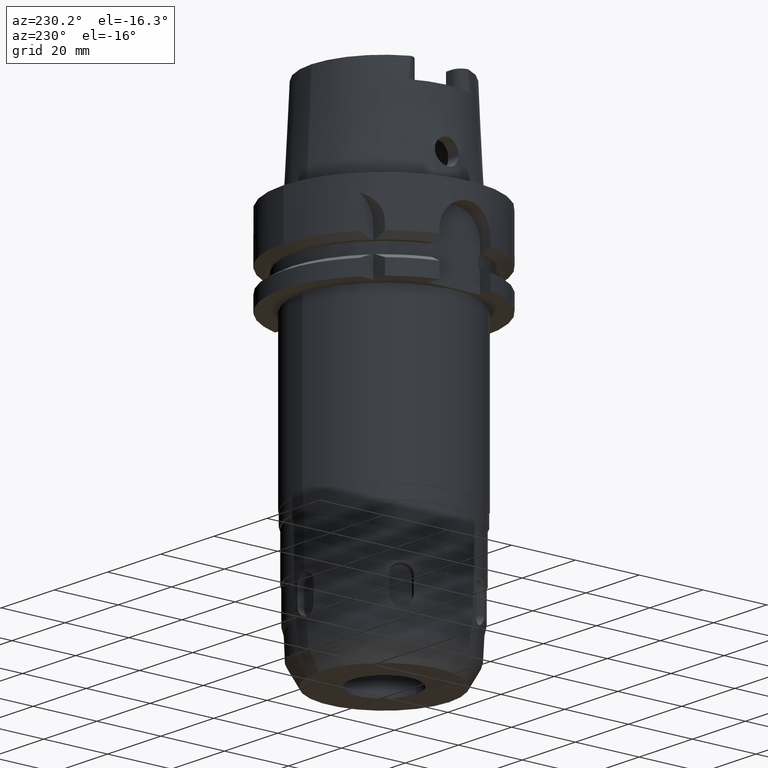
[diagram: clean part render]
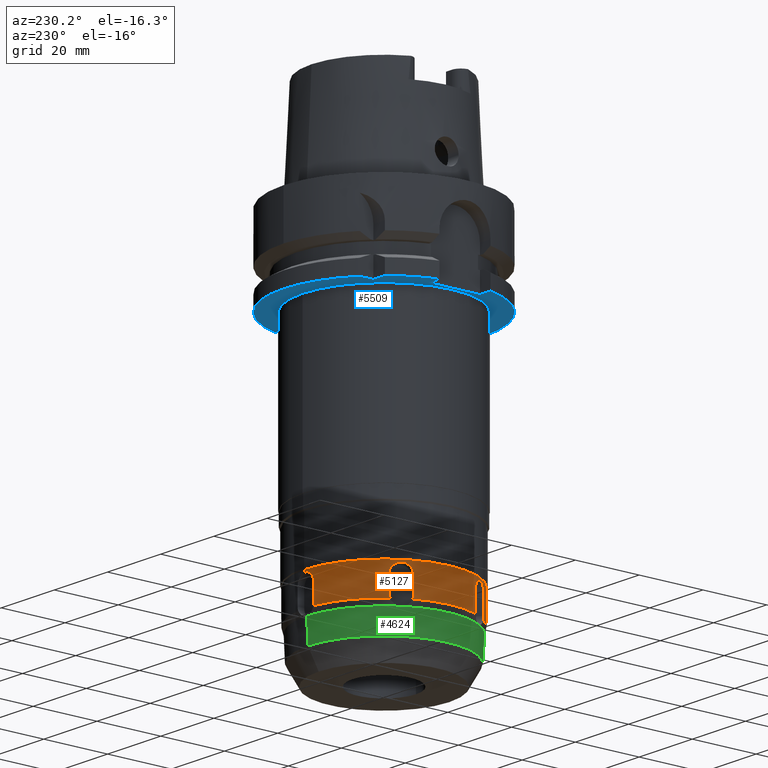
[diagram: same view with three faces highlighted in distinct colors, each labeled with its STEP entity id]
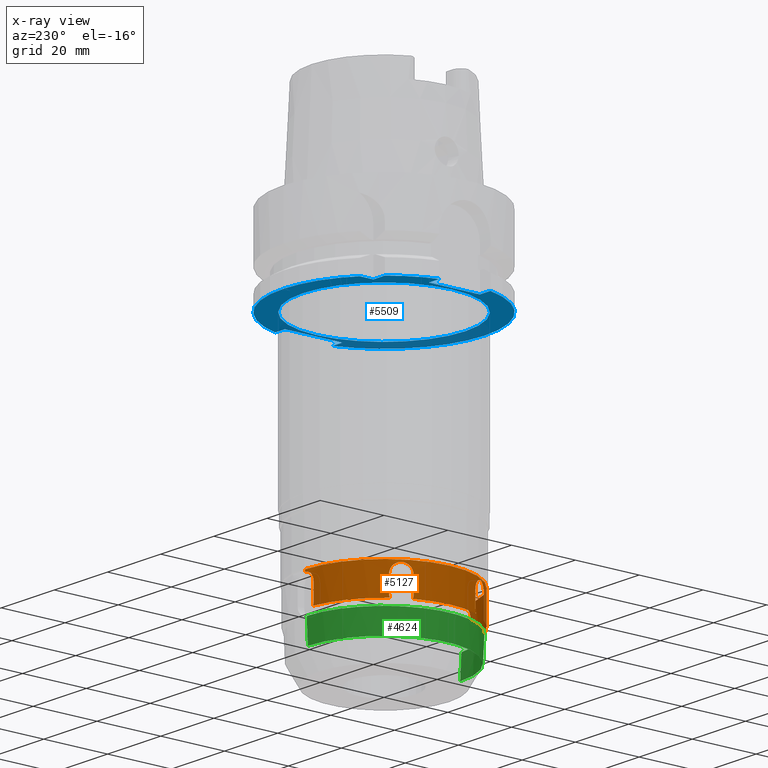
[diagram: x-ray of the same camera — body ghosted, the three highlighted faces saturated]
A machine part, auxiliary view with three faces highlighted in distinct colors.
The next image is the same camera in x-ray (body ghosted, the three faces saturated) — at least one of them is partly hidden behind the body in this view.
Their STEP definitions:

[orange] entity #5127 — the highlighted cylindrical surface (partial cylindrical patch) has radius 24.75 mm, axis along (0, 0, 1).
#1067=CARTESIAN_POINT('',(-2.791053688459E0,-2.459212354890E1,
-1.048999982076E2));
#1092=CARTESIAN_POINT('',(-1.990187334694E1,-1.471324433832E1,
-1.048998637992E2));
#1097=CARTESIAN_POINT('',(0.E0,0.E0,-1.049E2));
#1098=DIRECTION('',(0.E0,0.E0,1.E0));
#1099=DIRECTION('',(-8.041164375904E-1,-5.944718284301E-1,0.E0));
#1100=AXIS2_PLACEMENT_3D('',#1097,#1098,#1099);
#1119=CARTESIAN_POINT('',(-2.269293057500E1,-9.878938362055E0,
-1.048999982155E2));
#1144=CARTESIAN_POINT('',(-2.269298004242E1,9.878905732455E0,
-1.048998637999E2));
#1149=CARTESIAN_POINT('',(0.E0,0.E0,-1.049E2));
#1150=DIRECTION('',(0.E0,0.E0,1.E0));
#1151=DIRECTION('',(-9.168859240498E-1,3.991493483389E-1,0.E0));
#1152=AXIS2_PLACEMENT_3D('',#1149,#1150,#1151);
#1171=CARTESIAN_POINT('',(-1.990187687145E1,1.471318518327E1,
-1.048999982154E2));
#1196=CARTESIAN_POINT('',(-2.791106678747E0,2.459215007449E1,
-1.048998637914E2));
#1201=CARTESIAN_POINT('',(0.E0,0.E0,-1.049E2));
#1202=DIRECTION('',(0.E0,0.E0,1.E0));
#1203=DIRECTION('',(-1.127694840425E-1,9.936211770432E-1,0.E0));
#1204=AXIS2_PLACEMENT_3D('',#1201,#1202,#1203);
#1542=DIRECTION('',(4.266615438622E-14,0.E0,-1.E0));
#1543=VECTOR('',#1542,6.5E-1);
#1544=CARTESIAN_POINT('',(0.E0,2.475E1,-9.515E1));
#1545=LINE('',#1544,#1543);
#1755=CARTESIAN_POINT('',(-5.962979981919E-14,-2.475E1,-9.58E1));
#1756=CARTESIAN_POINT('',(-2.662645524946E-1,-2.475E1,-9.58E1));
#1757=CARTESIAN_POINT('',(-7.795338374290E-1,-2.474160640095E1,
-9.586808717948E1));
#1758=CARTESIAN_POINT('',(-1.516762018167E0,-2.470672806270E1,
-9.617123720497E1));
#1759=CARTESIAN_POINT('',(-2.143587253262E0,-2.465909975459E1,
-9.665283251450E1));
#1760=CARTESIAN_POINT('',(-2.626587224429E0,-2.461129208604E1,
-9.727927013878E1));
#1761=CARTESIAN_POINT('',(-2.931354392499E0,-2.457603994873E1,
-9.801768891794E1));
#1762=CARTESIAN_POINT('',(-3.E0,-2.456750903124E1,-9.853256828693E1));
#1763=CARTESIAN_POINT('',(-3.E0,-2.456750903124E1,-9.88E1));
#1768=DIRECTION('',(-3.500573829080E-7,6.419746980768E-6,-9.999999999793E-1));
#1769=VECTOR('',#1768,5.000000011345E0);
#1770=CARTESIAN_POINT('',(-3.E0,-2.456750903124E1,-9.88E1));
#1771=LINE('',#1770,#1769);
#1775=CARTESIAN_POINT('',(-3.000001750287E0,-2.456747693250E1,
-1.038000000112E2));
#1776=CARTESIAN_POINT('',(-3.000001750287E0,-2.456747693250E1,
-1.039258398910E2));
#1777=CARTESIAN_POINT('',(-2.984312583282E0,-2.456944745145E1,
-1.041751526095E2));
#1778=CARTESIAN_POINT('',(-2.913993243811E0,-2.457791124520E1,
-1.045455265275E2));
#1779=CARTESIAN_POINT('',(-2.837150839367E0,-2.458689182489E1,
-1.047830341084E2));
#1780=CARTESIAN_POINT('',(-2.791053688459E0,-2.459212354890E1,
-1.048999982076E2));
#1785=CARTESIAN_POINT('',(-1.990187334694E1,-1.471324433832E1,
-1.048998637992E2));
#1786=CARTESIAN_POINT('',(-1.987430407935E1,-1.475053609914E1,
-1.047828930596E2));
#1787=CARTESIAN_POINT('',(-1.982809966071E1,-1.481252839824E1,
-1.045455924256E2));
#1788=CARTESIAN_POINT('',(-1.978559808732E1,-1.486921216605E1,
-1.041751338513E2));
#1789=CARTESIAN_POINT('',(-1.977608562212E1,-1.488183184828E1,
-1.039258399199E2));
#1790=CARTESIAN_POINT('',(-1.977608562212E1,-1.488183184828E1,
-1.038000000003E2));
#1795=DIRECTION('',(-2.613281679810E-7,2.242622020419E-7,9.999999999999E-1));
#1796=VECTOR('',#1795,5.000000000252E0);
#1797=CARTESIAN_POINT('',(-1.977608562212E1,-1.488183184828E1,
-1.038000000003E2));
#1798=LINE('',#1797,#1796);
#1802=CARTESIAN_POINT('',(-1.977608692876E1,-1.488183072697E1,-9.88E1));
#1803=CARTESIAN_POINT('',(-1.977608692876E1,-1.488183072697E1,
-9.853383857182E1));
#1804=CARTESIAN_POINT('',(-1.981739600459E1,-1.482717786315E1,
-9.802087144904E1));
#1805=CARTESIAN_POINT('',(-1.999937085931E1,-1.458216086687E1,
-9.728328101451E1));
#1806=CARTESIAN_POINT('',(-2.028168683197E1,-1.418869635220E1,
-9.665611603340E1));
#1807=CARTESIAN_POINT('',(-2.063644574452E1,-1.366968890522E1,
-9.617301531720E1));
#1808=CARTESIAN_POINT('',(-2.103600344040E1,-1.304768700826E1,
-9.586848333083E1));
#1809=CARTESIAN_POINT('',(-2.130059877802E1,-1.260628068483E1,
-9.579999999995E1));
#1810=CARTESIAN_POINT('',(-2.143412874367E1,-1.2375E1,-9.579999999995E1));
#1815=CARTESIAN_POINT('',(-2.143412874367E1,-1.2375E1,-9.579999999995E1));
#1816=CARTESIAN_POINT('',(-2.156719497902E1,-1.214452251960E1,
-9.579999999995E1));
#1817=CARTESIAN_POINT('',(-2.181649773619E1,-1.169595766413E1,
-9.586796669322E1));
#1818=CARTESIAN_POINT('',(-2.215525224865E1,-1.103938179111E1,
-9.617147053671E1));
#1819=CARTESIAN_POINT('',(-2.242732347952E1,-1.047288167213E1,
-9.665312518574E1));
#1820=CARTESIAN_POINT('',(-2.262745443314E1,-1.003060178379E1,
-9.727989942902E1));
#1821=CARTESIAN_POINT('',(-2.274919421742E1,-9.749291543532E0,
-9.801822781376E1));
#1822=CARTESIAN_POINT('',(-2.277608692876E1,-9.685678304267E0,
-9.853279219692E1));
#1823=CARTESIAN_POINT('',(-2.277608692876E1,-9.685678304267E0,-9.88E1));
#1828=DIRECTION('',(5.384983793140E-6,3.511176867682E-6,-9.999999999793E-1));
#1829=VECTOR('',#1828,5.000000011343E0);
#1830=CARTESIAN_POINT('',(-2.277608692876E1,-9.685678304267E0,-9.88E1));
#1831=LINE('',#1830,#1829);
#1835=CARTESIAN_POINT('',(-2.277606000384E1,-9.685660748383E0,
-1.038000000112E2));
#1836=CARTESIAN_POINT('',(-2.277606000384E1,-9.685660748383E0,
-1.039258398910E2));
#1837=CARTESIAN_POINT('',(-2.276992192566E1,-9.700233249894E0,
-1.041751526112E2));
#1838=CARTESIAN_POINT('',(-2.274209214573E1,-9.765363418419E0,
-1.045455265342E2));
#1839=CARTESIAN_POINT('',(-2.271144834337E1,-9.836401198793E0,
-1.047830341261E2));
#1840=CARTESIAN_POINT('',(-2.269293057500E1,-9.878938362055E0,
-1.048999982155E2));
#1845=CARTESIAN_POINT('',(-2.269298004242E1,9.878905732455E0,
-1.048998637999E2));
#1846=CARTESIAN_POINT('',(-2.271149102089E1,9.836384165868E0,
-1.047828930604E2));
#1847=CARTESIAN_POINT('',(-2.274207571754E1,9.765373815740E0,
-1.045455924253E2));
#1848=CARTESIAN_POINT('',(-2.276991451370E1,9.700224489687E0,
-1.041751338514E2));
#1849=CARTESIAN_POINT('',(-2.277608724652E1,9.685676612028E0,
-1.039258399199E2));
#1850=CARTESIAN_POINT('',(-2.277608724652E1,9.685676612028E0,
-1.038000000003E2));
#1855=DIRECTION('',(6.355267316528E-8,3.384478983122E-7,9.999999999999E-1));
#1856=VECTOR('',#1855,5.000000000252E0);
#1857=CARTESIAN_POINT('',(-2.277608724652E1,9.685676612028E0,
-1.038000000003E2));
#1858=LINE('',#1857,#1856);
#1862=CARTESIAN_POINT('',(-2.277608692876E1,9.685678304267E0,-9.88E1));
#1863=CARTESIAN_POINT('',(-2.277608692876E1,9.685678304267E0,
-9.853373251150E1));
#1864=CARTESIAN_POINT('',(-2.274938072537E1,9.748848658717E0,
-9.802063980012E1));
#1865=CARTESIAN_POINT('',(-2.262821647423E1,1.002886282488E1,
-9.728334608947E1));
#1866=CARTESIAN_POINT('',(-2.242865439697E1,1.047001350088E1,
-9.665628267898E1));
#1867=CARTESIAN_POINT('',(-2.215683745652E1,1.103620499515E1,
-9.617342414526E1));
#1868=CARTESIAN_POINT('',(-2.181772186107E1,1.169370983328E1,
-9.586847860067E1));
#1869=CARTESIAN_POINT('',(-2.156769692320E1,1.214365312676E1,
-9.580000000001E1));
#1870=CARTESIAN_POINT('',(-2.143412874366E1,1.2375E1,-9.580000000001E1));
#1875=CARTESIAN_POINT('',(-2.143412874366E1,1.2375E1,-9.580000000001E1));
#1876=CARTESIAN_POINT('',(-2.130111584599E1,1.260538509684E1,
-9.580000000001E1));
#1877=CARTESIAN_POINT('',(-2.103738156879E1,1.304543139092E1,
-9.586795604344E1));
#1878=CARTESIAN_POINT('',(-2.063848522783E1,1.366660440100E1,
-9.617098715681E1));
#1879=CARTESIAN_POINT('',(-2.028360931973E1,1.418596093663E1,
-9.665278626784E1));
#1880=CARTESIAN_POINT('',(-2.000057790470E1,1.458051959346E1,
-9.727959453941E1));
#1881=CARTESIAN_POINT('',(-1.981771435116E1,1.482675782222E1,
-9.801824517823E1));
#1882=CARTESIAN_POINT('',(-1.977608692876E1,1.488183072697E1,
-9.853281110207E1));
#1883=CARTESIAN_POINT('',(-1.977608692876E1,1.488183072697E1,-9.88E1));
#1888=DIRECTION('',(5.733260279822E-6,-2.907944327799E-6,-9.999999999793E-1));
#1889=VECTOR('',#1888,5.000000011343E0);
#1890=CARTESIAN_POINT('',(-1.977608692876E1,1.488183072697E1,-9.88E1));
#1891=LINE('',#1890,#1889);
#1895=CARTESIAN_POINT('',(-1.977605826246E1,1.488181618725E1,
-1.038000000112E2));
#1896=CARTESIAN_POINT('',(-1.977605826246E1,1.488181618725E1,
-1.039258398910E2));
#1897=CARTESIAN_POINT('',(-1.978560937987E1,1.486921420486E1,
-1.041751526112E2));
#1898=CARTESIAN_POINT('',(-1.982809887041E1,1.481254782420E1,
-1.045455265342E2));
#1899=CARTESIAN_POINT('',(-1.987429749164E1,1.475049062271E1,
-1.047830341260E2));
#1900=CARTESIAN_POINT('',(-1.990187687145E1,1.471318518327E1,
-1.048999982154E2));
#1905=CARTESIAN_POINT('',(-2.791106678747E0,2.459215007449E1,
-1.048998637914E2));
#1906=CARTESIAN_POINT('',(-2.837186927845E0,2.458692026857E1,
-1.047828930411E2));
#1907=CARTESIAN_POINT('',(-2.913976021794E0,2.457790221695E1,
-1.045455924179E2));
#1908=CARTESIAN_POINT('',(-2.984316465806E0,2.456943665226E1,
-1.041751338495E2));
#1909=CARTESIAN_POINT('',(-3.000001633892E0,2.456750845698E1,
-1.039258399199E2));
#1910=CARTESIAN_POINT('',(-3.000001633892E0,2.456750845698E1,
-1.038000000003E2));
#1915=DIRECTION('',(3.267783815820E-7,1.148526585779E-7,9.999999999999E-1));
#1916=VECTOR('',#1915,5.000000000254E0);
#1917=CARTESIAN_POINT('',(-3.000001633892E0,2.456750845698E1,
-1.038000000003E2));
#1918=LINE('',#1917,#1916);
#1922=CARTESIAN_POINT('',(-3.E0,2.456750903124E1,-9.88E1));
#1923=CARTESIAN_POINT('',(-3.E0,2.456750903124E1,-9.853360551011E1));
#1924=CARTESIAN_POINT('',(-2.931882932467E0,2.457597357732E1,
-9.802033955802E1));
#1925=CARTESIAN_POINT('',(-2.628629614918E0,2.461106547124E1,
-9.728298672291E1));
#1926=CARTESIAN_POINT('',(-2.146943182026E0,2.465880030444E1,
-9.665618726254E1));
#1927=CARTESIAN_POINT('',(-1.520474456165E0,2.470650269839E1,
-9.617327815202E1));
#1928=CARTESIAN_POINT('',(-7.821983936888E-1,2.474154003070E1,
-9.586862002065E1));
#1929=CARTESIAN_POINT('',(-2.673074186077E-1,2.475E1,-9.58E1));
#1930=CARTESIAN_POINT('',(3.076400117893E-14,2.475E1,-9.58E1));
#1935=DIRECTION('',(-5.325597400572E-14,0.E0,-1.E0));
#1936=VECTOR('',#1935,6.5E-1);
#1937=CARTESIAN_POINT('',(-2.501341671547E-14,-2.475E1,-9.515E1));
#1938=LINE('',#1937,#1936);
#2151=CARTESIAN_POINT('',(0.E0,0.E0,-9.515E1));
#2152=DIRECTION('',(0.E0,0.E0,-1.E0));
#2153=DIRECTION('',(0.E0,-1.E0,0.E0));
#2154=AXIS2_PLACEMENT_3D('',#2151,#2152,#2153);
#3580=VERTEX_POINT('',#1067);
#3581=VERTEX_POINT('',#1775);
#3592=VERTEX_POINT('',#1171);
#3593=VERTEX_POINT('',#1196);
#3594=VERTEX_POINT('',#1119);
#3595=VERTEX_POINT('',#1144);
#3596=VERTEX_POINT('',#1092);
#3609=VERTEX_POINT('',#1895);
#3616=CARTESIAN_POINT('',(-2.277608724652E1,9.685676612028E0,
-1.038000000003E2));
#3617=VERTEX_POINT('',#3616);
#3618=VERTEX_POINT('',#1755);
#3619=VERTEX_POINT('',#1763);
#3620=VERTEX_POINT('',#1790);
#3621=CARTESIAN_POINT('',(-1.977608692876E1,-1.488183072697E1,-9.88E1));
#3622=VERTEX_POINT('',#3621);
#3623=VERTEX_POINT('',#1815);
#3624=VERTEX_POINT('',#1823);
#3625=CARTESIAN_POINT('',(-2.277606000384E1,-9.685660748383E0,
-1.038000000112E2));
#3626=VERTEX_POINT('',#3625);
#3627=CARTESIAN_POINT('',(-2.277608692876E1,9.685678304267E0,-9.88E1));
#3628=VERTEX_POINT('',#3627);
#3629=VERTEX_POINT('',#1875);
#3630=VERTEX_POINT('',#1883);
#3631=VERTEX_POINT('',#1910);
#3632=CARTESIAN_POINT('',(-3.E0,2.456750903124E1,-9.88E1));
#3633=VERTEX_POINT('',#3632);
#3634=VERTEX_POINT('',#1930);
#3635=CARTESIAN_POINT('',(0.E0,2.475E1,-9.515E1));
#3636=VERTEX_POINT('',#3635);
#3637=CARTESIAN_POINT('',(-4.699583260305E-14,-2.475E1,-9.515E1));
#3638=VERTEX_POINT('',#3637);
#5084=CARTESIAN_POINT('',(0.E0,0.E0,-1.276E2));
#5085=DIRECTION('',(0.E0,0.E0,1.E0));
#5086=DIRECTION('',(0.E0,1.E0,0.E0));
#5087=AXIS2_PLACEMENT_3D('',#5084,#5085,#5086);
#5088=CYLINDRICAL_SURFACE('',#5087,2.475E1);
#5090=ORIENTED_EDGE('',*,*,#5089,.T.);
#5091=ORIENTED_EDGE('',*,*,#5075,.T.);
#5092=ORIENTED_EDGE('',*,*,#4633,.T.);
#5093=ORIENTED_EDGE('',*,*,#4661,.F.);
#5094=ORIENTED_EDGE('',*,*,#4685,.T.);
#5096=ORIENTED_EDGE('',*,*,#5095,.T.);
#5098=ORIENTED_EDGE('',*,*,#5097,.T.);
#5100=ORIENTED_EDGE('',*,*,#5099,.T.);
#5102=ORIENTED_EDGE('',*,*,#5101,.T.);
#5103=ORIENTED_EDGE('',*,*,#4675,.T.);
#5104=ORIENTED_EDGE('',*,*,#4700,.F.);
#5105=ORIENTED_EDGE('',*,*,#4724,.T.);
#5107=ORIENTED_EDGE('',*,*,#5106,.T.);
#5109=ORIENTED_EDGE('',*,*,#5108,.T.);
#5111=ORIENTED_EDGE('',*,*,#5110,.T.);
#5113=ORIENTED_EDGE('',*,*,#5112,.T.);
#5114=ORIENTED_EDGE('',*,*,#4714,.T.);
#5115=ORIENTED_EDGE('',*,*,#4739,.F.);
#5116=ORIENTED_EDGE('',*,*,#4764,.T.);
#5118=ORIENTED_EDGE('',*,*,#5117,.T.);
#5120=ORIENTED_EDGE('',*,*,#5119,.T.);
#5121=ORIENTED_EDGE('',*,*,#4910,.F.);
#5123=ORIENTED_EDGE('',*,*,#5122,.F.);
#5124=ORIENTED_EDGE('',*,*,#4906,.T.);
#5125=EDGE_LOOP('',(#5090,#5091,#5092,#5093,#5094,#5096,#5098,#5100,#5102,#5103,
#5104,#5105,#5107,#5109,#5111,#5113,#5114,#5115,#5116,#5118,#5120,#5121,#5123,
#5124));
#5126=FACE_OUTER_BOUND('',#5125,.F.);
#1101=CIRCLE('',#1100,2.474999999999E1);
#1153=CIRCLE('',#1152,2.474999999999E1);
#1205=CIRCLE('',#1204,2.474999999999E1);
#1764=B_SPLINE_CURVE_WITH_KNOTS('',3,(#1755,#1756,#1757,#1758,#1759,#1760,#1761,
#1762,#1763),.UNSPECIFIED.,.F.,.F.,(4,1,1,1,1,1,4),(0.E0,1.666666666667E-1,
3.333333333333E-1,5.E-1,6.666666666667E-1,8.333333333333E-1,1.E0),
.UNSPECIFIED.);
#1781=B_SPLINE_CURVE_WITH_KNOTS('',3,(#1775,#1776,#1777,#1778,#1779,#1780),
.UNSPECIFIED.,.F.,.F.,(4,1,1,4),(0.E0,3.333333333333E-1,6.666666666667E-1,1.E0),
.UNSPECIFIED.);
#1791=B_SPLINE_CURVE_WITH_KNOTS('',3,(#1785,#1786,#1787,#1788,#1789,#1790),
.UNSPECIFIED.,.F.,.F.,(4,1,1,4),(0.E0,3.333333333333E-1,6.666666666667E-1,1.E0),
.UNSPECIFIED.);
#1811=B_SPLINE_CURVE_WITH_KNOTS('',3,(#1802,#1803,#1804,#1805,#1806,#1807,#1808,
#1809,#1810),.UNSPECIFIED.,.F.,.F.,(4,1,1,1,1,1,4),(0.E0,1.666666666667E-1,
3.333333333333E-1,5.E-1,6.666666666667E-1,8.333333333333E-1,1.E0),
.UNSPECIFIED.);
#1824=B_SPLINE_CURVE_WITH_KNOTS('',3,(#1815,#1816,#1817,#1818,#1819,#1820,#1821,
#1822,#1823),.UNSPECIFIED.,.F.,.F.,(4,1,1,1,1,1,4),(0.E0,1.666666666667E-1,
3.333333333333E-1,5.E-1,6.666666666667E-1,8.333333333333E-1,1.E0),
.UNSPECIFIED.);
#1841=B_SPLINE_CURVE_WITH_KNOTS('',3,(#1835,#1836,#1837,#1838,#1839,#1840),
.UNSPECIFIED.,.F.,.F.,(4,1,1,4),(0.E0,3.333333333333E-1,6.666666666667E-1,1.E0),
.UNSPECIFIED.);
#1851=B_SPLINE_CURVE_WITH_KNOTS('',3,(#1845,#1846,#1847,#1848,#1849,#1850),
.UNSPECIFIED.,.F.,.F.,(4,1,1,4),(0.E0,3.333333333333E-1,6.666666666667E-1,1.E0),
.UNSPECIFIED.);
#1871=B_SPLINE_CURVE_WITH_KNOTS('',3,(#1862,#1863,#1864,#1865,#1866,#1867,#1868,
#1869,#1870),.UNSPECIFIED.,.F.,.F.,(4,1,1,1,1,1,4),(0.E0,1.666666666667E-1,
3.333333333333E-1,5.E-1,6.666666666667E-1,8.333333333333E-1,1.E0),
.UNSPECIFIED.);
#1884=B_SPLINE_CURVE_WITH_KNOTS('',3,(#1875,#1876,#1877,#1878,#1879,#1880,#1881,
#1882,#1883),.UNSPECIFIED.,.F.,.F.,(4,1,1,1,1,1,4),(0.E0,1.666666666667E-1,
3.333333333333E-1,5.E-1,6.666666666667E-1,8.333333333333E-1,1.E0),
.UNSPECIFIED.);
#1901=B_SPLINE_CURVE_WITH_KNOTS('',3,(#1895,#1896,#1897,#1898,#1899,#1900),
.UNSPECIFIED.,.F.,.F.,(4,1,1,4),(0.E0,3.333333333333E-1,6.666666666667E-1,1.E0),
.UNSPECIFIED.);
#1911=B_SPLINE_CURVE_WITH_KNOTS('',3,(#1905,#1906,#1907,#1908,#1909,#1910),
.UNSPECIFIED.,.F.,.F.,(4,1,1,4),(0.E0,3.333333333333E-1,6.666666666667E-1,1.E0),
.UNSPECIFIED.);
#1931=B_SPLINE_CURVE_WITH_KNOTS('',3,(#1922,#1923,#1924,#1925,#1926,#1927,#1928,
#1929,#1930),.UNSPECIFIED.,.F.,.F.,(4,1,1,1,1,1,4),(0.E0,1.666666666667E-1,
3.333333333333E-1,5.E-1,6.666666666667E-1,8.333333333333E-1,1.E0),
.UNSPECIFIED.);
#2155=CIRCLE('',#2154,2.475E1);
#4633=EDGE_CURVE('',#3581,#3580,#1781,.T.);
#4661=EDGE_CURVE('',#3596,#3580,#1101,.T.);
#4675=EDGE_CURVE('',#3626,#3594,#1841,.T.);
#4685=EDGE_CURVE('',#3596,#3620,#1791,.T.);
#4700=EDGE_CURVE('',#3595,#3594,#1153,.T.);
#4714=EDGE_CURVE('',#3609,#3592,#1901,.T.);
#4724=EDGE_CURVE('',#3595,#3617,#1851,.T.);
#4739=EDGE_CURVE('',#3593,#3592,#1205,.T.);
#4764=EDGE_CURVE('',#3593,#3631,#1911,.T.);
#4906=EDGE_CURVE('',#3638,#3618,#1938,.T.);
#4910=EDGE_CURVE('',#3636,#3634,#1545,.T.);
#5075=EDGE_CURVE('',#3619,#3581,#1771,.T.);
#5089=EDGE_CURVE('',#3618,#3619,#1764,.T.);
#5095=EDGE_CURVE('',#3620,#3622,#1798,.T.);
#5097=EDGE_CURVE('',#3622,#3623,#1811,.T.);
#5099=EDGE_CURVE('',#3623,#3624,#1824,.T.);
#5101=EDGE_CURVE('',#3624,#3626,#1831,.T.);
#5106=EDGE_CURVE('',#3617,#3628,#1858,.T.);
#5108=EDGE_CURVE('',#3628,#3629,#1871,.T.);
#5110=EDGE_CURVE('',#3629,#3630,#1884,.T.);
#5112=EDGE_CURVE('',#3630,#3609,#1891,.T.);
#5117=EDGE_CURVE('',#3631,#3633,#1918,.T.);
#5119=EDGE_CURVE('',#3633,#3634,#1931,.T.);
#5122=EDGE_CURVE('',#3638,#3636,#2155,.T.);
#5127=ADVANCED_FACE('',(#5126),#5088,.T.);

[blue] entity #5509 — the highlighted planar face has unit normal (0, 0, 1).
#2302=DIRECTION('',(-1.E0,-1.540316790609E-13,0.E0));
#2303=VECTOR('',#2302,4.336187047278E0);
#2304=CARTESIAN_POINT('',(-2.E1,2.E1,-2.6E1));
#2305=LINE('',#2304,#2303);
#2309=CARTESIAN_POINT('',(0.E0,0.E0,-2.6E1));
#2310=DIRECTION('',(0.E0,0.E0,1.E0));
#2311=DIRECTION('',(-7.725773665802E-1,6.349206349206E-1,0.E0));
#2312=AXIS2_PLACEMENT_3D('',#2309,#2310,#2311);
#2317=DIRECTION('',(-1.E0,-8.686570378871E-14,0.E0));
#2318=VECTOR('',#2317,3.967195473163E0);
#2319=CARTESIAN_POINT('',(-2.65E1,-8.E0,-2.6E1));
#2320=LINE('',#2319,#2318);
#2324=CARTESIAN_POINT('',(0.E0,0.E0,-2.6E1));
#2325=DIRECTION('',(0.E0,0.E0,1.E0));
#2326=DIRECTION('',(-9.672125547036E-1,-2.539682539683E-1,0.E0));
#2327=AXIS2_PLACEMENT_3D('',#2324,#2325,#2326);
#2332=CARTESIAN_POINT('',(0.E0,0.E0,-2.6E1));
#2333=DIRECTION('',(0.E0,0.E0,1.E0));
#2334=DIRECTION('',(0.E0,-1.E0,0.E0));
#2335=AXIS2_PLACEMENT_3D('',#2332,#2333,#2334);
#2340=DIRECTION('',(-1.E0,-6.889739586341E-14,0.E0));
#2341=VECTOR('',#2340,3.686917696248E0);
#2342=CARTESIAN_POINT('',(3.018691769625E1,-9.E0,-2.6E1));
#2343=LINE('',#2342,#2341);
#2347=DIRECTION('',(0.E0,1.E0,0.E0));
#2348=VECTOR('',#2347,1.8E1);
#2349=CARTESIAN_POINT('',(2.65E1,-9.E0,-2.6E1));
#2350=LINE('',#2349,#2348);
#2354=CARTESIAN_POINT('',(0.E0,0.E0,-2.6E1));
#2355=DIRECTION('',(0.E0,0.E0,1.E0));
#2356=DIRECTION('',(9.583148474999E-1,2.857142857143E-1,0.E0));
#2357=AXIS2_PLACEMENT_3D('',#2354,#2355,#2356);
#2362=CARTESIAN_POINT('',(0.E0,0.E0,-2.6E1));
#2363=DIRECTION('',(0.E0,0.E0,1.E0));
#2364=DIRECTION('',(0.E0,1.E0,0.E0));
#2365=AXIS2_PLACEMENT_3D('',#2362,#2363,#2364);
#2370=CARTESIAN_POINT('',(0.E0,0.E0,-2.6E1));
#2371=DIRECTION('',(0.E0,0.E0,-1.E0));
#2372=DIRECTION('',(0.E0,-1.E0,0.E0));
#2373=AXIS2_PLACEMENT_3D('',#2370,#2371,#2372);
#2378=CARTESIAN_POINT('',(0.E0,0.E0,-2.6E1));
#2379=DIRECTION('',(0.E0,0.E0,-1.E0));
#2380=DIRECTION('',(0.E0,1.E0,0.E0));
#2381=AXIS2_PLACEMENT_3D('',#2378,#2379,#2380);
#2386=DIRECTION('',(1.556703139446E-13,1.E0,0.E0));
#2387=VECTOR('',#2386,4.336187047278E0);
#2388=CARTESIAN_POINT('',(-2.E1,2.E1,-2.6E1));
#2389=LINE('',#2388,#2387);
#2407=DIRECTION('',(-1.E0,7.275179563200E-14,0.E0));
#2408=VECTOR('',#2407,3.686917696248E0);
#2409=CARTESIAN_POINT('',(3.018691769625E1,9.E0,-2.6E1));
#2410=LINE('',#2409,#2408);
#2544=DIRECTION('',(0.E0,1.E0,0.E0));
#2545=VECTOR('',#2544,1.6E1);
#2546=CARTESIAN_POINT('',(-2.65E1,-8.E0,-2.6E1));
#2547=LINE('',#2546,#2545);
#2581=DIRECTION('',(-1.E0,8.776122650818E-14,0.E0));
#2582=VECTOR('',#2581,3.967195473163E0);
#2583=CARTESIAN_POINT('',(-2.65E1,8.E0,-2.6E1));
#2584=LINE('',#2583,#2582);
#3722=CARTESIAN_POINT('',(0.E0,2.55E1,-2.6E1));
#3723=VERTEX_POINT('',#3722);
#3724=CARTESIAN_POINT('',(0.E0,-2.55E1,-2.6E1));
#3725=VERTEX_POINT('',#3724);
#3726=CARTESIAN_POINT('',(-2.E1,2.E1,-2.6E1));
#3727=CARTESIAN_POINT('',(-2.E1,2.433618704728E1,-2.6E1));
#3728=VERTEX_POINT('',#3726);
#3729=VERTEX_POINT('',#3727);
#3730=CARTESIAN_POINT('',(-2.433618704728E1,2.E1,-2.6E1));
#3731=VERTEX_POINT('',#3730);
#3732=CARTESIAN_POINT('',(-3.046719547316E1,8.E0,-2.6E1));
#3733=VERTEX_POINT('',#3732);
#3734=CARTESIAN_POINT('',(-2.65E1,8.E0,-2.6E1));
#3735=VERTEX_POINT('',#3734);
#3736=CARTESIAN_POINT('',(-2.65E1,-8.E0,-2.6E1));
#3737=VERTEX_POINT('',#3736);
#3738=CARTESIAN_POINT('',(-3.046719547316E1,-8.E0,-2.6E1));
#3739=VERTEX_POINT('',#3738);
#3740=CARTESIAN_POINT('',(-1.425430758458E-14,-3.15E1,-2.6E1));
#3741=CARTESIAN_POINT('',(3.018691769625E1,-9.E0,-2.6E1));
#3742=VERTEX_POINT('',#3740);
#3743=VERTEX_POINT('',#3741);
#3744=CARTESIAN_POINT('',(2.65E1,-9.E0,-2.6E1));
#3745=VERTEX_POINT('',#3744);
#3746=CARTESIAN_POINT('',(2.65E1,9.E0,-2.6E1));
#3747=VERTEX_POINT('',#3746);
#3748=CARTESIAN_POINT('',(3.018691769625E1,9.E0,-2.6E1));
#3749=VERTEX_POINT('',#3748);
#3750=CARTESIAN_POINT('',(0.E0,3.15E1,-2.6E1));
#3751=VERTEX_POINT('',#3750);
#5472=CARTESIAN_POINT('',(0.E0,0.E0,-2.6E1));
#5473=DIRECTION('',(0.E0,0.E0,1.E0));
#5474=DIRECTION('',(0.E0,1.E0,0.E0));
#5475=AXIS2_PLACEMENT_3D('',#5472,#5473,#5474);
#5476=PLANE('',#5475);
#5478=ORIENTED_EDGE('',*,*,#5477,.F.);
#5480=ORIENTED_EDGE('',*,*,#5479,.T.);
#5482=ORIENTED_EDGE('',*,*,#5481,.T.);
#5484=ORIENTED_EDGE('',*,*,#5483,.F.);
#5486=ORIENTED_EDGE('',*,*,#5485,.F.);
#5488=ORIENTED_EDGE('',*,*,#5487,.T.);
#5490=ORIENTED_EDGE('',*,*,#5489,.T.);
#5492=ORIENTED_EDGE('',*,*,#5491,.T.);
#5494=ORIENTED_EDGE('',*,*,#5493,.T.);
#5496=ORIENTED_EDGE('',*,*,#5495,.T.);
#5498=ORIENTED_EDGE('',*,*,#5497,.F.);
#5500=ORIENTED_EDGE('',*,*,#5499,.T.);
#5502=ORIENTED_EDGE('',*,*,#5501,.T.);
#5503=EDGE_LOOP('',(#5478,#5480,#5482,#5484,#5486,#5488,#5490,#5492,#5494,#5496,
#5498,#5500,#5502));
#5504=FACE_OUTER_BOUND('',#5503,.F.);
#5505=ORIENTED_EDGE('',*,*,#5465,.T.);
#5506=ORIENTED_EDGE('',*,*,#5454,.T.);
#5507=EDGE_LOOP('',(#5505,#5506));
#5508=FACE_BOUND('',#5507,.F.);
#2313=CIRCLE('',#2312,3.15E1);
#2328=CIRCLE('',#2327,3.15E1);
#2336=CIRCLE('',#2335,3.15E1);
#2358=CIRCLE('',#2357,3.15E1);
#2366=CIRCLE('',#2365,3.15E1);
#2374=CIRCLE('',#2373,2.55E1);
#2382=CIRCLE('',#2381,2.55E1);
#5454=EDGE_CURVE('',#3723,#3725,#2382,.T.);
#5465=EDGE_CURVE('',#3725,#3723,#2374,.T.);
#5477=EDGE_CURVE('',#3728,#3729,#2389,.T.);
#5479=EDGE_CURVE('',#3728,#3731,#2305,.T.);
#5481=EDGE_CURVE('',#3731,#3733,#2313,.T.);
#5483=EDGE_CURVE('',#3735,#3733,#2584,.T.);
#5485=EDGE_CURVE('',#3737,#3735,#2547,.T.);
#5487=EDGE_CURVE('',#3737,#3739,#2320,.T.);
#5489=EDGE_CURVE('',#3739,#3742,#2328,.T.);
#5491=EDGE_CURVE('',#3742,#3743,#2336,.T.);
#5493=EDGE_CURVE('',#3743,#3745,#2343,.T.);
#5495=EDGE_CURVE('',#3745,#3747,#2350,.T.);
#5497=EDGE_CURVE('',#3749,#3747,#2410,.T.);
#5499=EDGE_CURVE('',#3749,#3751,#2358,.T.);
#5501=EDGE_CURVE('',#3751,#3729,#2366,.T.);
#5509=ADVANCED_FACE('',(#5504,#5508),#5476,.F.);

[green] entity #4624 — the highlighted conical surface has half-angle 3 deg.
#978=CARTESIAN_POINT('',(-4.433824357291E-1,-2.424567038029E1,
-1.067670544988E2));
#979=CARTESIAN_POINT('',(-3.944822234362E-1,-2.424618161946E1,
-1.067743616874E2));
#980=CARTESIAN_POINT('',(-2.962999440552E-1,-2.424704194545E1,
-1.067865609428E2));
#981=CARTESIAN_POINT('',(-1.483226172678E-1,-2.424782321370E1,
-1.067975552082E2));
#982=CARTESIAN_POINT('',(-4.943903759691E-2,-2.424799802806E1,
-1.067999999964E2));
#983=CARTESIAN_POINT('',(0.E0,-2.424799802806E1,-1.067999999964E2));
#988=DIRECTION('',(0.E0,5.233597852932E-2,-9.986295335866E-1));
#989=VECTOR('',#988,7.388125180991E0);
#990=CARTESIAN_POINT('',(0.E0,-2.424799802806E1,-1.067999999964E2));
#991=LINE('',#990,#989);
#995=CARTESIAN_POINT('',(0.E0,0.E0,-1.14178E2));
#996=DIRECTION('',(0.E0,0.E0,-1.E0));
#997=DIRECTION('',(0.E0,-1.E0,0.E0));
#998=AXIS2_PLACEMENT_3D('',#995,#996,#997);
#1003=CARTESIAN_POINT('',(0.E0,2.424799802806E1,-1.067999999964E2));
#1004=CARTESIAN_POINT('',(-4.943904011482E-2,2.424799802806E1,
-1.067999999964E2));
#1005=CARTESIAN_POINT('',(-1.483220929741E-1,2.424782325779E1,
-1.067975553137E2));
#1006=CARTESIAN_POINT('',(-2.963017935978E-1,2.424704177342E1,
-1.067865605724E2));
#1007=CARTESIAN_POINT('',(-3.944782458298E-1,2.424618197971E1,
-1.067743624826E2));
#1008=CARTESIAN_POINT('',(-4.433880190899E-1,2.424567066254E1,
-1.067670535414E2));
#1013=CARTESIAN_POINT('',(-2.077567292476E1,1.250682024826E1,
-1.067670535729E2));
#1014=CARTESIAN_POINT('',(-2.080057047681E1,1.246471904991E1,
-1.067743624601E2));
#1015=CARTESIAN_POINT('',(-2.085040319312E1,1.238012573019E1,
-1.067865605805E2));
#1016=CARTESIAN_POINT('',(-2.092507019519E1,1.225236243501E1,
-1.067975553476E2));
#1017=CARTESIAN_POINT('',(-2.097466219923E1,1.216681412809E1,
-1.067999999209E2));
#1018=CARTESIAN_POINT('',(-2.099938170844E1,1.212399868219E1,
-1.067999999209E2));
#1023=CARTESIAN_POINT('',(-2.099938170844E1,1.212399868219E1,
-1.067999999209E2));
#1024=CARTESIAN_POINT('',(-2.102410121768E1,1.208118323626E1,
-1.067999999209E2));
#1025=CARTESIAN_POINT('',(-2.107339221763E1,1.199546115890E1,
-1.067975553504E2));
#1026=CARTESIAN_POINT('',(-2.114670499908E1,1.186691593940E1,
-1.067865605706E2));
#1027=CARTESIAN_POINT('',(-2.119504854821E1,1.178146300676E1,
-1.067743624815E2));
#1028=CARTESIAN_POINT('',(-2.121906060597E1,1.173885027159E1,
-1.067670535472E2));
#1033=CARTESIAN_POINT('',(-2.121906051795E1,-1.173885040941E1,
-1.067670535729E2));
#1034=CARTESIAN_POINT('',(-2.119504858666E1,-1.178146292118E1,
-1.067743624601E2));
#1035=CARTESIAN_POINT('',(-2.114670498095E1,-1.186691597930E1,
-1.067865605805E2));
#1036=CARTESIAN_POINT('',(-2.107339222269E1,-1.199546114751E1,
-1.067975553476E2));
#1037=CARTESIAN_POINT('',(-2.102410121766E1,-1.208118323628E1,
-1.067999999209E2));
#1038=CARTESIAN_POINT('',(-2.099938170844E1,-1.212399868219E1,
-1.067999999209E2));
#1043=CARTESIAN_POINT('',(-2.099938170844E1,-1.212399868219E1,
-1.067999999209E2));
#1044=CARTESIAN_POINT('',(-2.097466219922E1,-1.216681412811E1,
-1.067999999209E2));
#1045=CARTESIAN_POINT('',(-2.092507020253E1,-1.225236242492E1,
-1.067975553504E2));
#1046=CARTESIAN_POINT('',(-2.085040316764E1,-1.238012576584E1,
-1.067865605706E2));
#1047=CARTESIAN_POINT('',(-2.080057053171E1,-1.246471897381E1,
-1.067743624815E2));
#1048=CARTESIAN_POINT('',(-2.077567284940E1,-1.250682039343E1,
-1.067670535472E2));
#1078=CARTESIAN_POINT('',(0.E0,0.E0,-1.067670535314E2));
#1079=DIRECTION('',(0.E0,0.E0,-1.E0));
#1080=DIRECTION('',(-1.828426862213E-2,-9.998328287874E-1,0.E0));
#1081=AXIS2_PLACEMENT_3D('',#1078,#1079,#1080);
#1130=CARTESIAN_POINT('',(0.E0,0.E0,-1.067670535314E2));
#1131=DIRECTION('',(0.E0,0.E0,-1.E0));
#1132=DIRECTION('',(-8.750227635786E-1,-4.840817732772E-1,0.E0));
#1133=AXIS2_PLACEMENT_3D('',#1130,#1131,#1132);
#1182=CARTESIAN_POINT('',(0.E0,0.E0,-1.067670535314E2));
#1183=DIRECTION('',(0.E0,0.E0,-1.E0));
#1184=DIRECTION('',(-8.567384949564E-1,5.157510555102E-1,0.E0));
#1185=AXIS2_PLACEMENT_3D('',#1182,#1183,#1184);
#1261=DIRECTION('',(0.E0,-5.233597852932E-2,-9.986295335866E-1));
#1262=VECTOR('',#1261,7.388125180990E0);
#1263=CARTESIAN_POINT('',(0.E0,2.424799802806E1,-1.067999999964E2));
#1264=LINE('',#1263,#1262);
#3563=CARTESIAN_POINT('',(0.E0,2.386133326722E1,-1.14178E2));
#3564=VERTEX_POINT('',#3563);
#3565=CARTESIAN_POINT('',(0.E0,-2.386133326722E1,-1.14178E2));
#3566=VERTEX_POINT('',#3565);
#3567=VERTEX_POINT('',#978);
#3568=VERTEX_POINT('',#983);
#3569=CARTESIAN_POINT('',(0.E0,2.424799802806E1,-1.067999999964E2));
#3570=VERTEX_POINT('',#3569);
#3571=VERTEX_POINT('',#1008);
#3572=CARTESIAN_POINT('',(-2.077567248326E1,1.250682101394E1,
-1.067670535314E2));
#3573=VERTEX_POINT('',#3572);
#3574=VERTEX_POINT('',#1023);
#3575=VERTEX_POINT('',#1028);
#3576=CARTESIAN_POINT('',(-2.121906096028E1,-1.173884964423E1,
-1.067670535314E2));
#3577=VERTEX_POINT('',#3576);
#3578=VERTEX_POINT('',#1043);
#3579=VERTEX_POINT('',#1048);
#4594=CARTESIAN_POINT('',(0.E0,0.E0,-1.104725267657E2));
#4595=DIRECTION('',(0.E0,0.E0,1.E0));
#4596=DIRECTION('',(0.E0,1.E0,0.E0));
#4597=AXIS2_PLACEMENT_3D('',#4594,#4595,#4596);
#4598=CONICAL_SURFACE('',#4597,2.405552889062E1,3.000000000001E0);
#4600=ORIENTED_EDGE('',*,*,#4599,.T.);
#4602=ORIENTED_EDGE('',*,*,#4601,.T.);
#4603=ORIENTED_EDGE('',*,*,#4587,.T.);
#4605=ORIENTED_EDGE('',*,*,#4604,.F.);
#4607=ORIENTED_EDGE('',*,*,#4606,.T.);
#4609=ORIENTED_EDGE('',*,*,#4608,.F.);
#4611=ORIENTED_EDGE('',*,*,#4610,.T.);
#4613=ORIENTED_EDGE('',*,*,#4612,.T.);
#4615=ORIENTED_EDGE('',*,*,#4614,.F.);
#4617=ORIENTED_EDGE('',*,*,#4616,.T.);
#4619=ORIENTED_EDGE('',*,*,#4618,.T.);
#4621=ORIENTED_EDGE('',*,*,#4620,.F.);
#4622=EDGE_LOOP('',(#4600,#4602,#4603,#4605,#4607,#4609,#4611,#4613,#4615,#4617,
#4619,#4621));
#4623=FACE_OUTER_BOUND('',#4622,.F.);
#984=B_SPLINE_CURVE_WITH_KNOTS('',3,(#978,#979,#980,#981,#982,#983),
.UNSPECIFIED.,.F.,.F.,(4,1,1,4),(0.E0,3.333333333333E-1,6.666666666667E-1,1.E0),
.UNSPECIFIED.);
#999=CIRCLE('',#998,2.386133326722E1);
#1009=B_SPLINE_CURVE_WITH_KNOTS('',3,(#1003,#1004,#1005,#1006,#1007,#1008),
.UNSPECIFIED.,.F.,.F.,(4,1,1,4),(0.E0,3.333333333333E-1,6.666666666667E-1,1.E0),
.UNSPECIFIED.);
#1019=B_SPLINE_CURVE_WITH_KNOTS('',3,(#1013,#1014,#1015,#1016,#1017,#1018),
.UNSPECIFIED.,.F.,.F.,(4,1,1,4),(0.E0,3.333333333333E-1,6.666666666667E-1,1.E0),
.UNSPECIFIED.);
#1029=B_SPLINE_CURVE_WITH_KNOTS('',3,(#1023,#1024,#1025,#1026,#1027,#1028),
.UNSPECIFIED.,.F.,.F.,(4,1,1,4),(0.E0,3.333333333333E-1,6.666666666667E-1,1.E0),
.UNSPECIFIED.);
#1039=B_SPLINE_CURVE_WITH_KNOTS('',3,(#1033,#1034,#1035,#1036,#1037,#1038),
.UNSPECIFIED.,.F.,.F.,(4,1,1,4),(0.E0,3.333333333333E-1,6.666666666667E-1,1.E0),
.UNSPECIFIED.);
#1049=B_SPLINE_CURVE_WITH_KNOTS('',3,(#1043,#1044,#1045,#1046,#1047,#1048),
.UNSPECIFIED.,.F.,.F.,(4,1,1,4),(0.E0,3.333333333333E-1,6.666666666667E-1,1.E0),
.UNSPECIFIED.);
#1082=CIRCLE('',#1081,2.424972451403E1);
#1134=CIRCLE('',#1133,2.424972451403E1);
#1186=CIRCLE('',#1185,2.424972451403E1);
#4587=EDGE_CURVE('',#3566,#3564,#999,.T.);
#4599=EDGE_CURVE('',#3567,#3568,#984,.T.);
#4601=EDGE_CURVE('',#3568,#3566,#991,.T.);
#4604=EDGE_CURVE('',#3570,#3564,#1264,.T.);
#4606=EDGE_CURVE('',#3570,#3571,#1009,.T.);
#4608=EDGE_CURVE('',#3573,#3571,#1186,.T.);
#4610=EDGE_CURVE('',#3573,#3574,#1019,.T.);
#4612=EDGE_CURVE('',#3574,#3575,#1029,.T.);
#4614=EDGE_CURVE('',#3577,#3575,#1134,.T.);
#4616=EDGE_CURVE('',#3577,#3578,#1039,.T.);
#4618=EDGE_CURVE('',#3578,#3579,#1049,.T.);
#4620=EDGE_CURVE('',#3567,#3579,#1082,.T.);
#4624=ADVANCED_FACE('',(#4623),#4598,.T.);